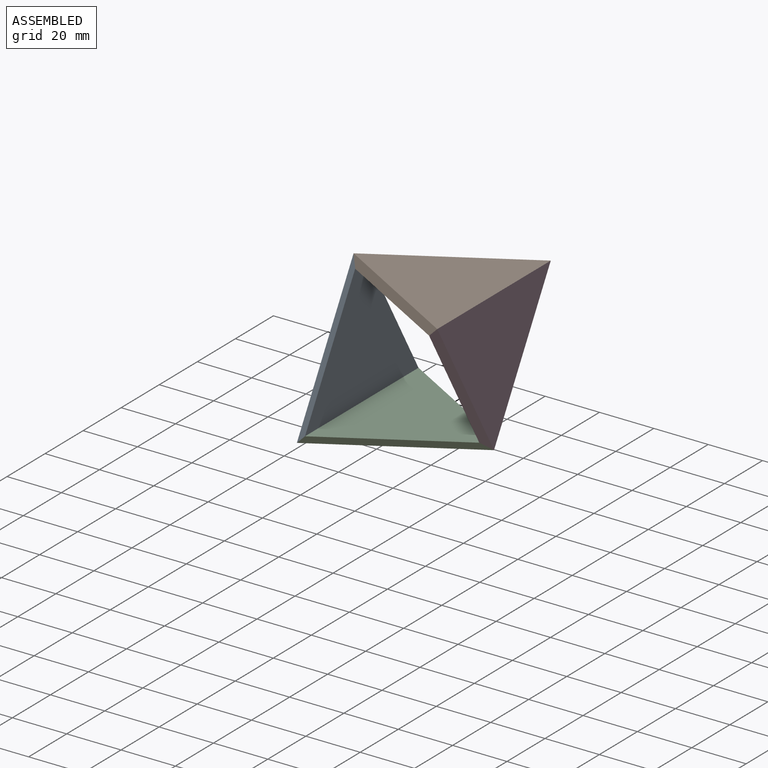
[diagram: assembled view]
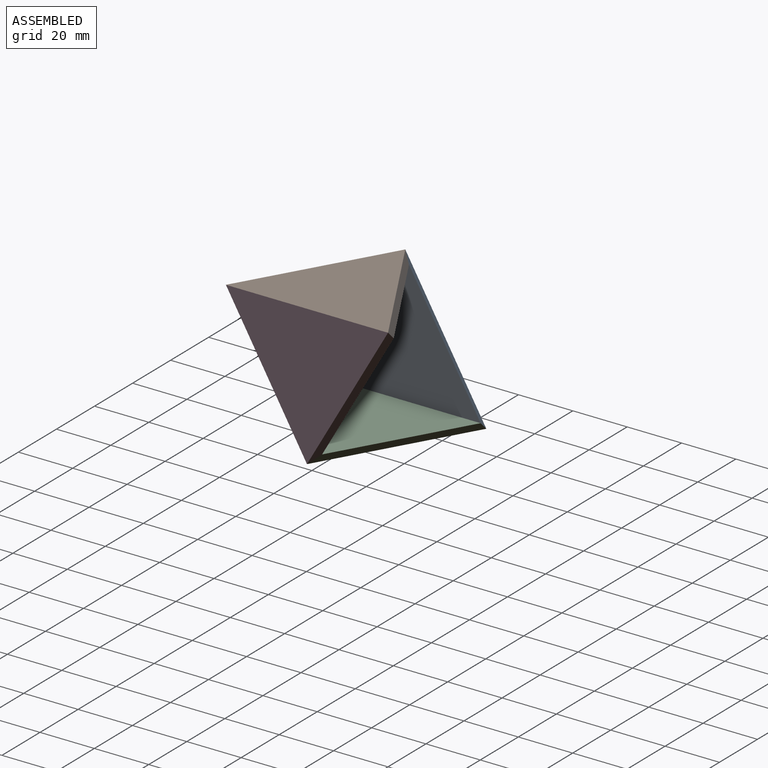
[diagram: assembled view, second angle]
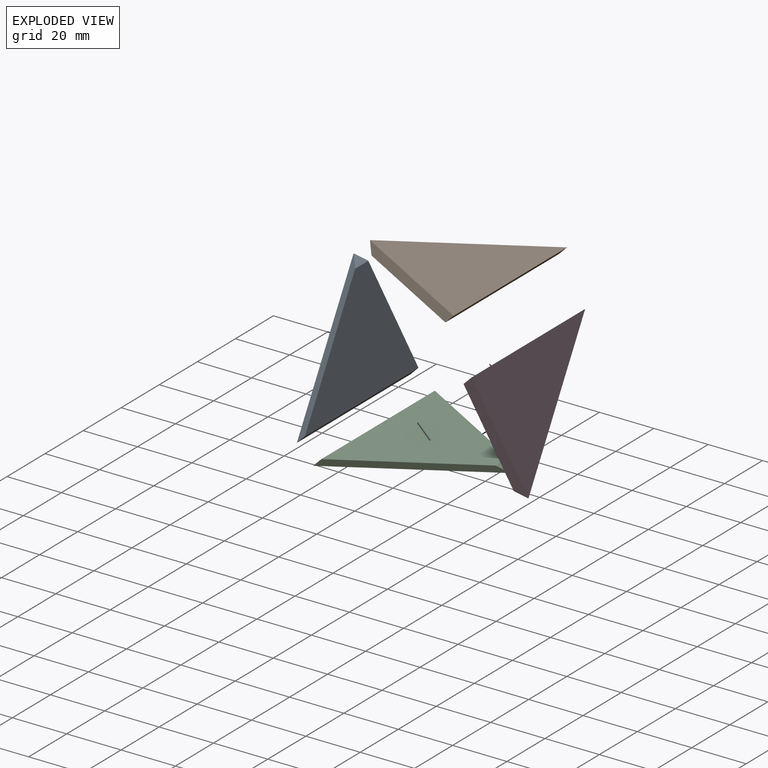
[diagram: exploded view]
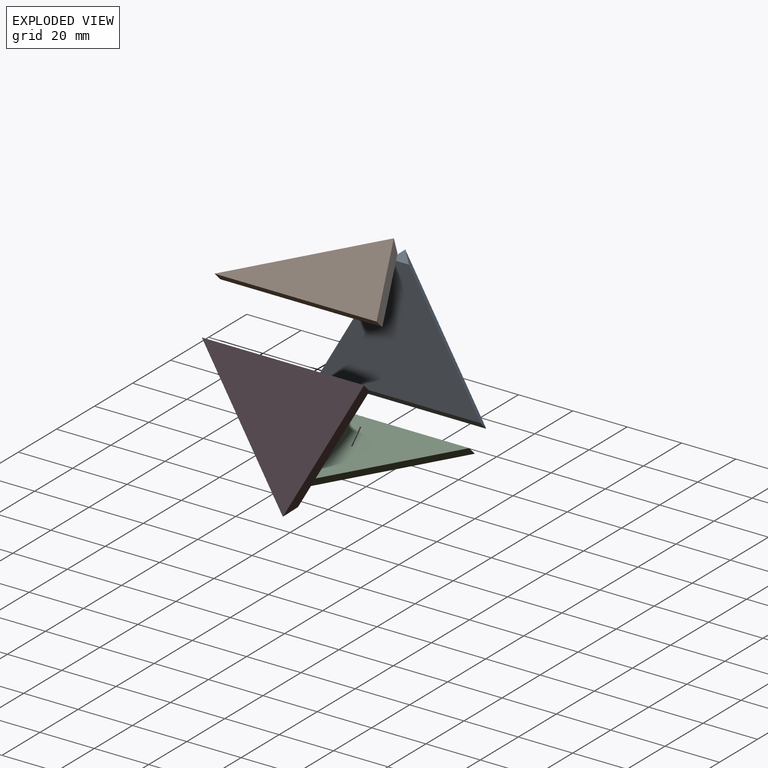
[diagram: exploded view, second angle]
ASSEMBLY  parts=4 mates=3
PART A: 6 faces, bbox 51.7x59.7x3 mm
  f0: plane 51.66x29.83mm, normal (0.45,-0.78,-0.45), area 188.4mm2, adj f2,f3,f4,f5
  f1: plane 51.66x29.83mm, normal (0.45,0.78,-0.45), area 188.4mm2, adj f2,f3,f4,f5
  f2: plane 59.65x45.66mm, normal (0,0,1), area 1519.8mm2, adj f0,f1,f4,f5
  f3: plane 59.66x51.66mm, normal (0,0,-1), area 1541.1mm2, adj f0,f1,f4
  f4: plane 59.66x3mm, normal (-0.71,0,0.71), area 253.1mm2, adj f0,f1,f2,f3
  f5: plane 6.92x3mm, normal (0.71,0,0.71), area 14.7mm2, adj f0,f1,f2
PART B: same geometry as A
PART C: same geometry as A
PART D: same geometry as A
PLACE A rot(axis=(-0.71,0,-0.71),180deg) t=(-26.65,-16.52,26.65)mm
PLACE B rot(axis=(0,1,0),180deg) t=(33.29,0,86.6)mm
PLACE C t=(-34.94,0,34.94)mm
PLACE D rot(axis=(0.71,0,-0.71),180deg) t=(25.01,-16.52,94.89)mm
MATE planar B.f5 <-> A.f5  axis (-0.71,0,-0.71) through (-24.65,-8.26,84.6)mm
MATE planar C.f4 <-> A.f4  axis (-0.71,0,0.71) through (-25.15,-8.26,36.44)mm
MATE planar D.f4 <-> B.f4  axis (-0.71,0,0.71) through (23.51,-8.26,85.1)mm
